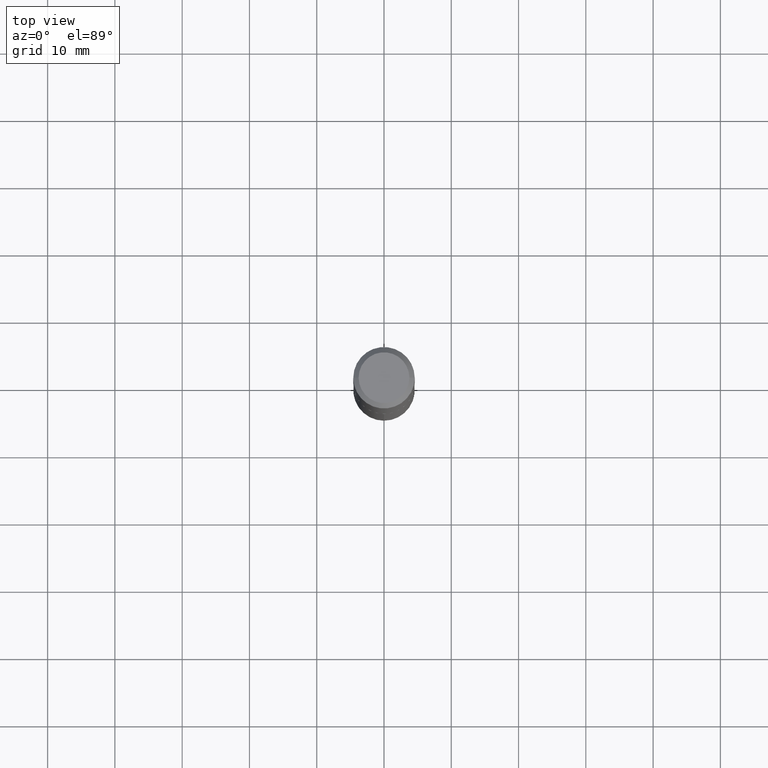
[diagram: clean part render]
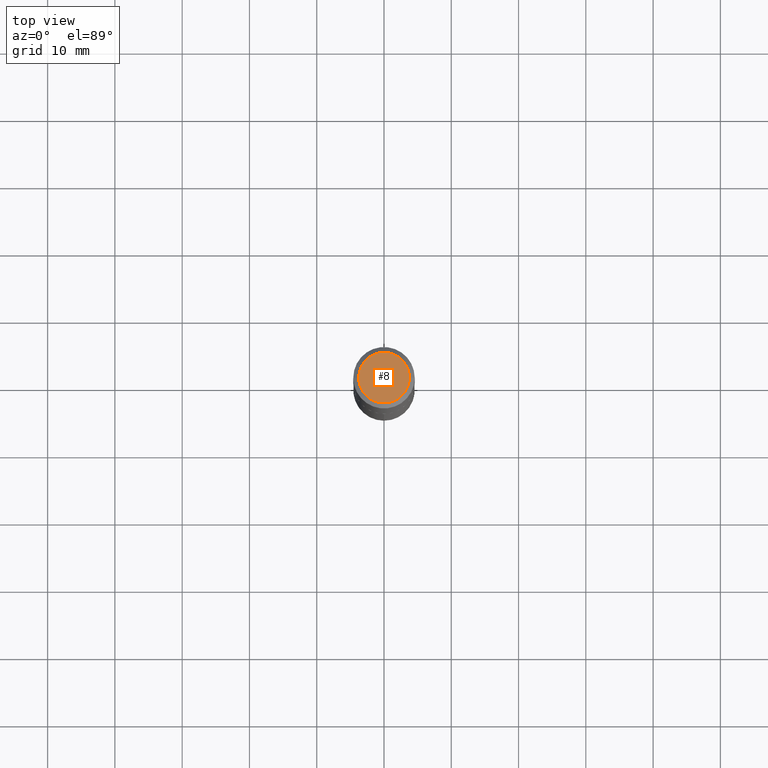
[diagram: same view with one face highlighted and labeled with its STEP entity id]
A machine part, top view. The second image highlights one B-rep face of the part: STEP entity #8.
In plain terms, the highlighted planar face has unit normal (0, -0, -1).
Its self-contained STEP definition (entity closure, byte-faithful):
#8 = ADVANCED_FACE ( 'NONE', ( #155 ), #70, .F. ) ;
#27 = CIRCLE ( 'NONE', #241, 0.1484499999999999986 ) ;
#65 = DIRECTION ( 'NONE',  ( 1.000000000000000000, -6.982962677686265133E-15, 4.876180875728685732E-29 ) ) ;
#70 = PLANE ( 'NONE',  #316 ) ;
#109 = CARTESIAN_POINT ( 'NONE',  ( 0.1484499999999999986, -1.180190604903788595E-15, 8.572527594806786642E-20 ) ) ;
#115 = EDGE_CURVE ( 'NONE', #377, #293, #168, .T. ) ;
#133 = AXIS2_PLACEMENT_3D ( 'NONE', #366, #358, #65 ) ;
#155 = FACE_OUTER_BOUND ( 'NONE', #188, .T. ) ;
#168 = CIRCLE ( 'NONE', #133, 0.1484499999999999986 ) ;
#188 = EDGE_LOOP ( 'NONE', ( #267, #325 ) ) ;
#209 = DIRECTION ( 'NONE',  ( -1.000000000000000000, 6.982962677686265922E-15, -4.876176775795935793E-29 ) ) ;
#210 = CARTESIAN_POINT ( 'NONE',  ( -0.1484499999999999986, 1.091175205421949460E-15, 8.572527593287684120E-20 ) ) ;
#241 = AXIS2_PLACEMENT_3D ( 'NONE', #317, #285, #259 ) ;
#246 = CARTESIAN_POINT ( 'NONE',  ( -1.048192441068291587E-48, 1.496541006063979969E-34, 4.286263797015848068E-20 ) ) ;
#259 = DIRECTION ( 'NONE',  ( 1.000000000000000000, -6.982962677686265133E-15, 4.876180875728685732E-29 ) ) ;
#267 = ORIENTED_EDGE ( 'NONE', *, *, #115, .T. ) ;
#282 = EDGE_CURVE ( 'NONE', #293, #377, #27, .T. ) ;
#285 = DIRECTION ( 'NONE',  ( -2.445468806185136597E-29, 3.491481338843145583E-15, 1.000000000000000000 ) ) ;
#293 = VERTEX_POINT ( 'NONE', #109 ) ;
#316 = AXIS2_PLACEMENT_3D ( 'NONE', #246, #338, #209 ) ;
#317 = CARTESIAN_POINT ( 'NONE',  ( -2.096384882136583174E-48, 2.993082012127959938E-34, 8.572527594031696135E-20 ) ) ;
#325 = ORIENTED_EDGE ( 'NONE', *, *, #282, .T. ) ;
#338 = DIRECTION ( 'NONE',  ( 2.438088387897960049E-29, -3.491481338843145188E-15, -1.000000000000000000 ) ) ;
#358 = DIRECTION ( 'NONE',  ( -2.445468806185136597E-29, 3.491481338843145583E-15, 1.000000000000000000 ) ) ;
#366 = CARTESIAN_POINT ( 'NONE',  ( -2.096384882136583174E-48, 2.993082012127959938E-34, 8.572527594031696135E-20 ) ) ;
#377 = VERTEX_POINT ( 'NONE', #210 ) ;